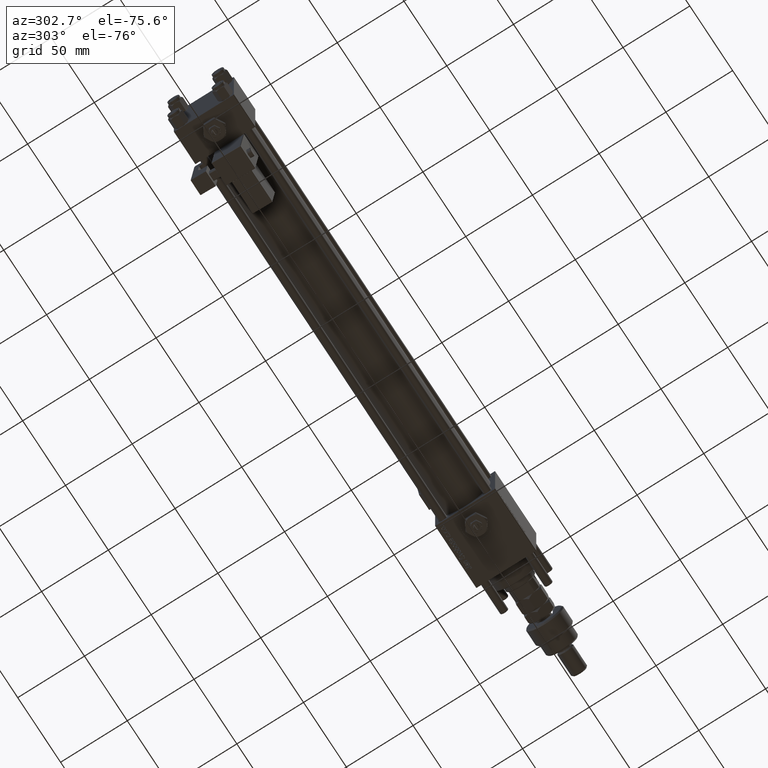
[diagram: clean part render]
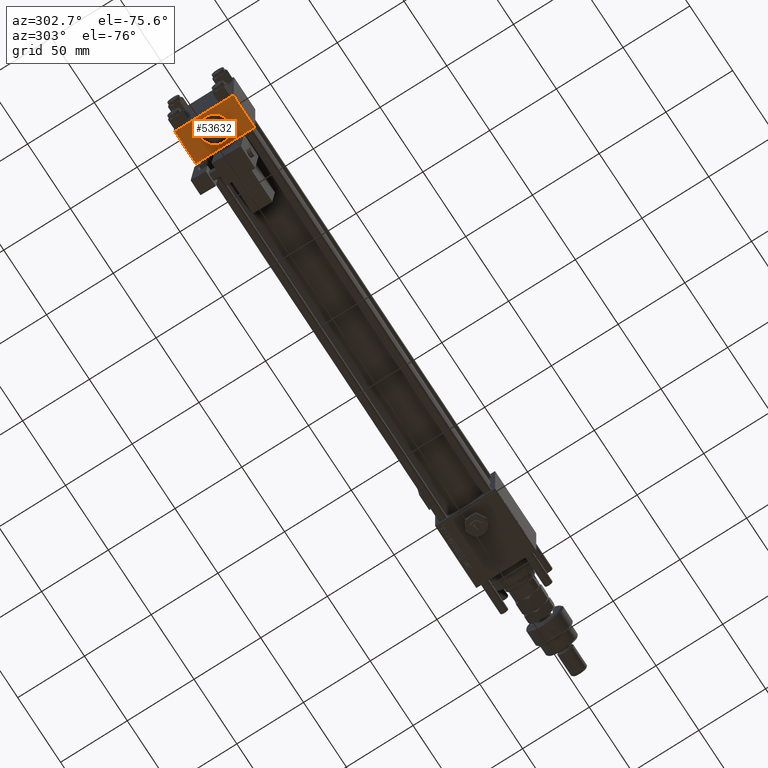
[diagram: same view with one face highlighted and labeled with its STEP entity id]
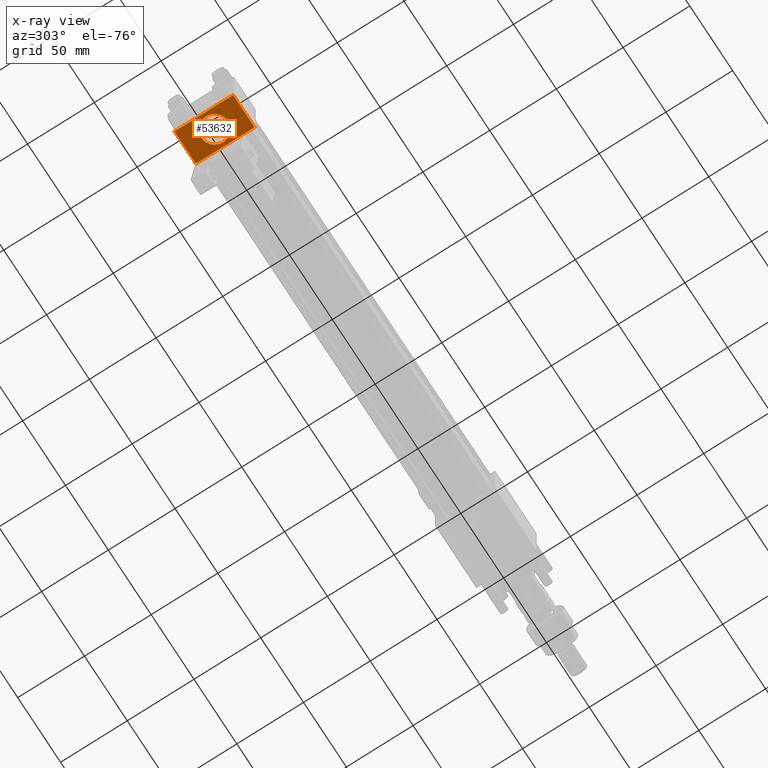
[diagram: x-ray of the same camera — body ghosted, the highlighted face saturated]
A machine part, auxiliary view. The second image highlights one B-rep face of the part: STEP entity #53632.
The next image is the same camera in x-ray: the body ghosted, the highlighted face saturated — about 0% of this face is hidden behind the body in this view.
In plain terms, the highlighted planar face has unit normal (0, 0, -1).
Its self-contained STEP definition (entity closure, byte-faithful):
#383 = DIRECTION ( 'NONE',  ( -1.000000000000000000, 0.000000000000000000, 0.000000000000000000 ) ) ;
#551 = ORIENTED_EDGE ( 'NONE', *, *, #13175, .T. ) ;
#982 = CIRCLE ( 'NONE', #43291, 10.00000000000000178 ) ;
#1731 = EDGE_LOOP ( 'NONE', ( #63831, #15094, #24924, #551 ) ) ;
#2501 = VERTEX_POINT ( 'NONE', #14522 ) ;
#3414 = DIRECTION ( 'NONE',  ( 0.000000000000000000, -1.000000000000000000, -2.312964634635742957E-16 ) ) ;
#3445 = EDGE_LOOP ( 'NONE', ( #45189, #36822 ) ) ;
#4401 = DIRECTION ( 'NONE',  ( 0.000000000000000000, 1.000000000000000000, 0.000000000000000000 ) ) ;
#5026 = CARTESIAN_POINT ( 'NONE',  ( 12.50000000000000178, 3.566060716959379104E-15, -22.50000000000000000 ) ) ;
#7442 = VERTEX_POINT ( 'NONE', #54219 ) ;
#7949 = CARTESIAN_POINT ( 'NONE',  ( 0.000000000000000000, 22.50000000000000000, -22.49999999999999645 ) ) ;
#8021 = AXIS2_PLACEMENT_3D ( 'NONE', #53935, #33923, #53289 ) ;
#9372 = VERTEX_POINT ( 'NONE', #49065 ) ;
#13175 = EDGE_CURVE ( 'NONE', #45201, #33313, #55316, .T. ) ;
#14522 = CARTESIAN_POINT ( 'NONE',  ( 12.50000000000000355, -9.999999999999998224, -22.50000000000000000 ) ) ;
#14976 = CIRCLE ( 'NONE', #29471, 10.00000000000000178 ) ;
#15094 = ORIENTED_EDGE ( 'NONE', *, *, #37048, .T. ) ;
#17885 = CARTESIAN_POINT ( 'NONE',  ( 25.00000000000000000, -21.99999999999997158, -22.50000000000000711 ) ) ;
#20015 = LINE ( 'NONE', #30362, #41325 ) ;
#21190 = EDGE_CURVE ( 'NONE', #2501, #7442, #14976, .T. ) ;
#21202 = VECTOR ( 'NONE', #3414, 1000.000000000000000 ) ;
#21284 = CARTESIAN_POINT ( 'NONE',  ( 0.000000000000000000, -21.99999999999997158, -22.50000000000000711 ) ) ;
#24442 = CARTESIAN_POINT ( 'NONE',  ( 12.50000000000000178, 3.566060716959379104E-15, -22.50000000000000000 ) ) ;
#24924 = ORIENTED_EDGE ( 'NONE', *, *, #34681, .T. ) ;
#27142 = CARTESIAN_POINT ( 'NONE',  ( 25.00000000000000000, 22.50000000000000000, -22.49999999999999645 ) ) ;
#29003 = DIRECTION ( 'NONE',  ( 0.000000000000000000, -1.734723475976806848E-16, -1.000000000000000000 ) ) ;
#29471 = AXIS2_PLACEMENT_3D ( 'NONE', #5026, #48679, #4401 ) ;
#30362 = CARTESIAN_POINT ( 'NONE',  ( 25.00000000000000000, 21.99999999999999289, -22.49999999999999645 ) ) ;
#30738 = CARTESIAN_POINT ( 'NONE',  ( 0.000000000000000000, 21.99999999999999289, -22.49999999999999645 ) ) ;
#32208 = VERTEX_POINT ( 'NONE', #30738 ) ;
#33313 = VERTEX_POINT ( 'NONE', #21284 ) ;
#33923 = DIRECTION ( 'NONE',  ( 0.000000000000000000, 2.312964634635742957E-16, -1.000000000000000000 ) ) ;
#34681 = EDGE_CURVE ( 'NONE', #9372, #45201, #42330, .T. ) ;
#36073 = VECTOR ( 'NONE', #52010, 1000.000000000000000 ) ;
#36121 = EDGE_CURVE ( 'NONE', #7442, #2501, #982, .T. ) ;
#36822 = ORIENTED_EDGE ( 'NONE', *, *, #21190, .F. ) ;
#37048 = EDGE_CURVE ( 'NONE', #32208, #9372, #20015, .T. ) ;
#38446 = FACE_BOUND ( 'NONE', #3445, .T. ) ;
#38767 = FACE_OUTER_BOUND ( 'NONE', #1731, .T. ) ;
#39014 = DIRECTION ( 'NONE',  ( 0.000000000000000000, 1.000000000000000000, 0.000000000000000000 ) ) ;
#41325 = VECTOR ( 'NONE', #50055, 1000.000000000000000 ) ;
#41692 = EDGE_CURVE ( 'NONE', #32208, #33313, #47699, .T. ) ;
#42330 = LINE ( 'NONE', #27142, #36073 ) ;
#43291 = AXIS2_PLACEMENT_3D ( 'NONE', #24442, #29003, #39014 ) ;
#44789 = VECTOR ( 'NONE', #383, 1000.000000000000000 ) ;
#45189 = ORIENTED_EDGE ( 'NONE', *, *, #36121, .F. ) ;
#45201 = VERTEX_POINT ( 'NONE', #17885 ) ;
#47699 = LINE ( 'NONE', #7949, #21202 ) ;
#48439 = PLANE ( 'NONE',  #8021 ) ;
#48679 = DIRECTION ( 'NONE',  ( 0.000000000000000000, -1.734723475976806848E-16, -1.000000000000000000 ) ) ;
#49065 = CARTESIAN_POINT ( 'NONE',  ( 25.00000000000000000, 21.99999999999999289, -22.49999999999999645 ) ) ;
#50055 = DIRECTION ( 'NONE',  ( 1.000000000000000000, 0.000000000000000000, 0.000000000000000000 ) ) ;
#52010 = DIRECTION ( 'NONE',  ( 0.000000000000000000, -1.000000000000000000, -2.312964634635742957E-16 ) ) ;
#53289 = DIRECTION ( 'NONE',  ( 0.000000000000000000, 1.000000000000000000, 2.312964634635742957E-16 ) ) ;
#53632 = ADVANCED_FACE ( 'NONE', ( #38446, #38767 ), #48439, .T. ) ;
#53935 = CARTESIAN_POINT ( 'NONE',  ( 25.00000000000000000, 22.50000000000000000, -22.49999999999999645 ) ) ;
#54219 = CARTESIAN_POINT ( 'NONE',  ( 12.50000000000000178, 10.00000000000000533, -22.50000000000000000 ) ) ;
#55316 = LINE ( 'NONE', #59522, #44789 ) ;
#59522 = CARTESIAN_POINT ( 'NONE',  ( 0.000000000000000000, -21.99999999999998579, -22.50000000000000711 ) ) ;
#63831 = ORIENTED_EDGE ( 'NONE', *, *, #41692, .F. ) ;